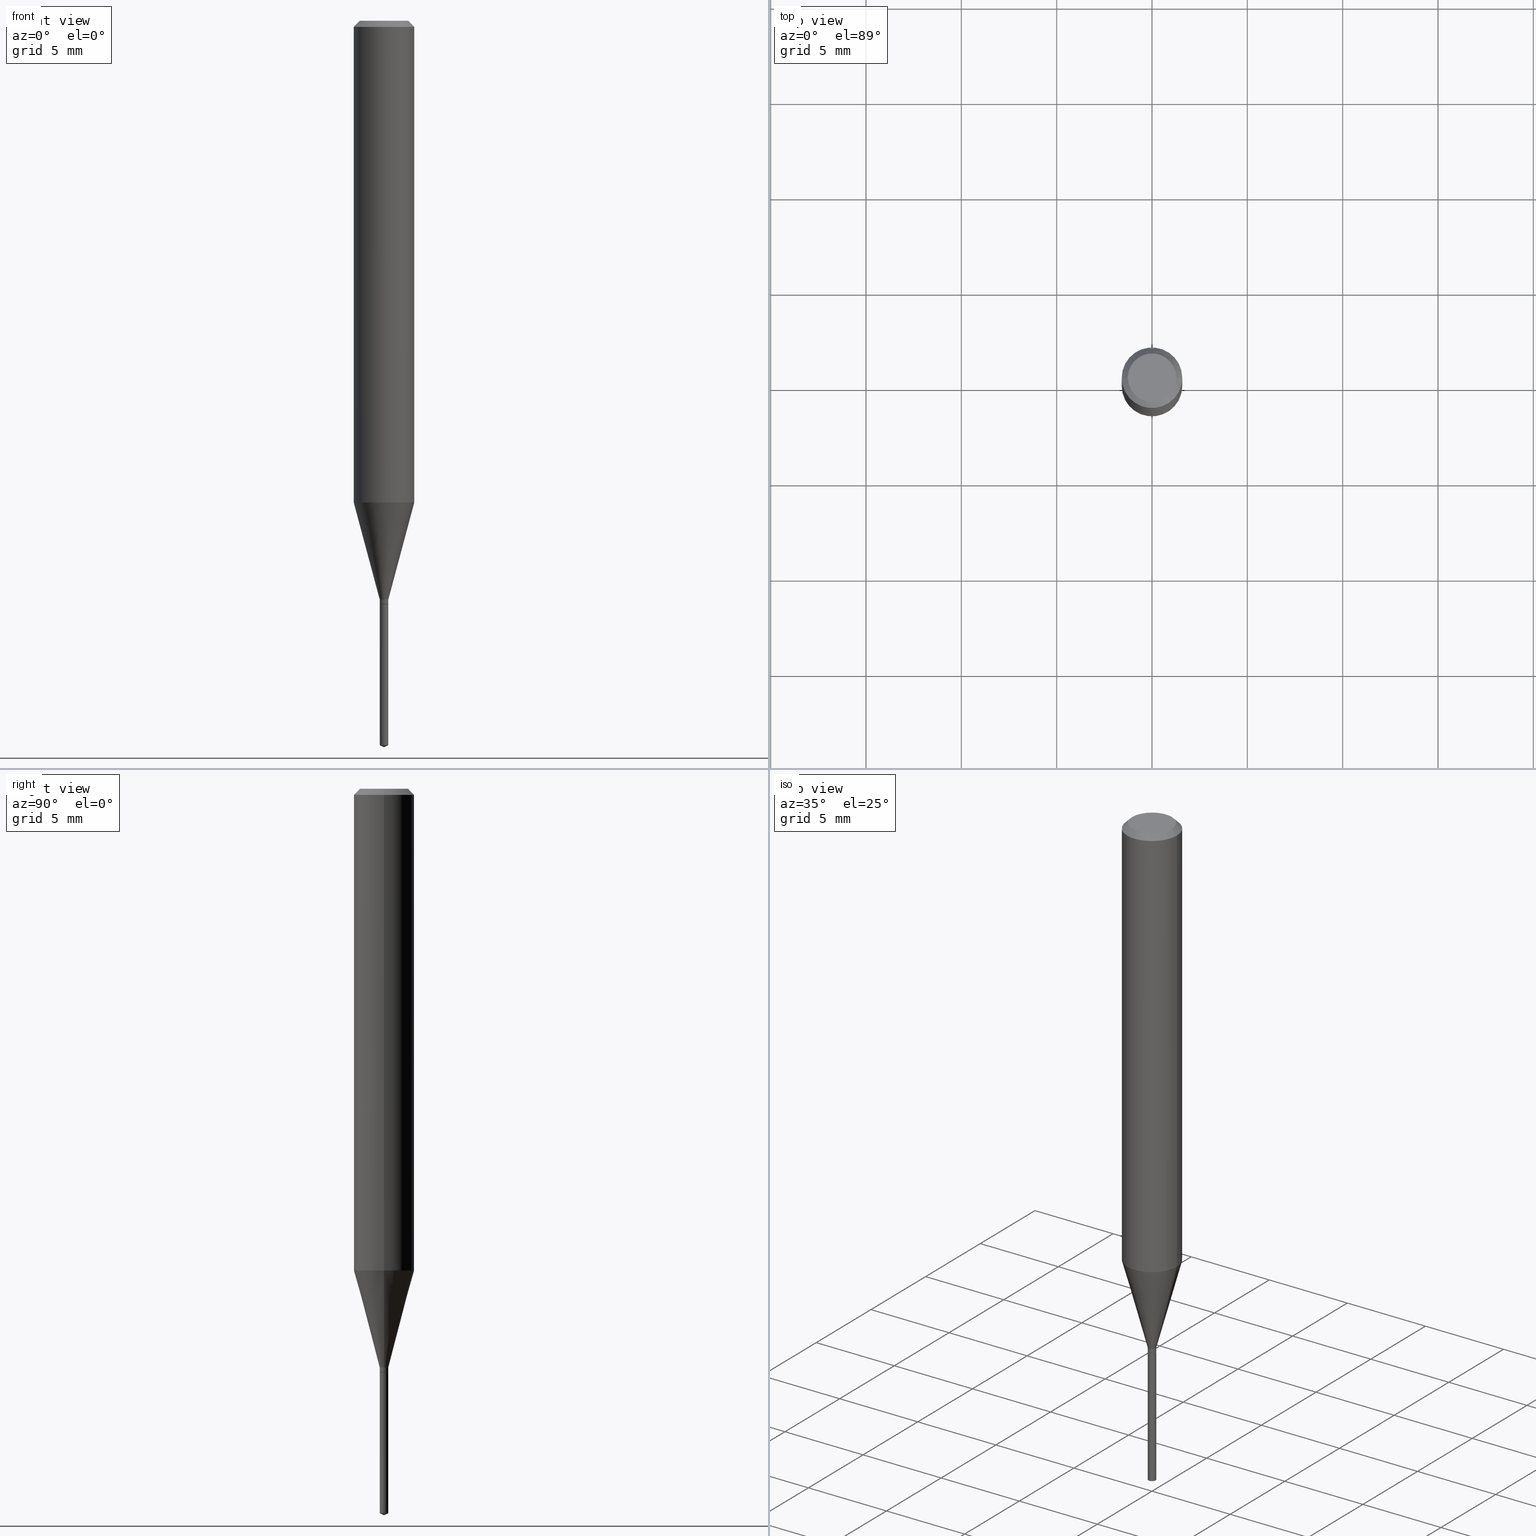
[diagram: canonical four-view strip — front | top / right | iso, engineering-drawing reading convention]
A machine part, canonical four-view strip (front | top / right | iso — engineering-drawing reading convention). The complete STEP part file that produces these views, byte-faithful:
ISO-10303-21;
HEADER;
FILE_DESCRIPTION (( 'STEP AP203' ),
    '1' );
FILE_NAME ('07145.STEP',
    '2024-04-23T19:43:20',
    ( '' ),
    ( '' ),
    'SwSTEP 2.0',
    'SolidWorks 2023',
    '' );
FILE_SCHEMA (( 'CONFIG_CONTROL_DESIGN' ));
ENDSEC;

DATA;
#1 = AXIS2_PLACEMENT_3D ( 'NONE', #396, #365, #218 ) ;
#2 = AXIS2_PLACEMENT_3D ( 'NONE', #449, #380, #273 ) ;
#3 = PERSON_AND_ORGANIZATION_ROLE ( 'creator' ) ;
#4 = EDGE_CURVE ( 'NONE', #179, #291, #445, .T. ) ;
#5 = DATE_TIME_ROLE ( 'classification_date' ) ;
#6 = DIRECTION ( 'NONE',  ( -2.445468806185136597E-29, 3.491481338843145583E-15, 1.000000000000000000 ) ) ;
#7 = CARTESIAN_POINT ( 'NONE',  ( 2.946789911453089913E-29, -4.207235013305990839E-15, -1.205000000000000071 ) ) ;
#8 = AXIS2_PLACEMENT_3D ( 'NONE', #368, #230, #334 ) ;
#9 = VECTOR ( 'NONE', #182, 39.37007874015748143 ) ;
#10 = DIRECTION ( 'NONE',  ( -2.445468806185136597E-29, 3.491481338843145583E-15, 1.000000000000000000 ) ) ;
#11 = DIRECTION ( 'NONE',  ( -6.328713451373487708E-15, -0.9063077870366654798, 0.4226182617406664122 ) ) ;
#12 = CC_DESIGN_DATE_AND_TIME_ASSIGNMENT ( #127, #5, ( #399 ) ) ;
#13 = EDGE_CURVE ( 'NONE', #407, #225, #275, .T. ) ;
#14 = DIRECTION ( 'NONE',  ( -0.7071067811865451302, 2.468850131082231817E-15, -0.7071067811865499042 ) ) ;
#15 = EDGE_LOOP ( 'NONE', ( #131, #426, #165, #97 ) ) ;
#16 = FACE_OUTER_BOUND ( 'NONE', #336, .T. ) ;
#17 = VECTOR ( 'NONE', #14, 39.37007874015748143 ) ;
#18 = CIRCLE ( 'NONE', #217, 0.008850000000000000228 ) ;
#19 = AXIS2_PLACEMENT_3D ( 'NONE', #213, #255, #168 ) ;
#20 = AXIS2_PLACEMENT_3D ( 'NONE', #118, #197, #155 ) ;
#21 = CARTESIAN_POINT ( 'NONE',  ( 0.06250000000000000000, -4.800786840909313294E-16, -0.01250000000000008570 ) ) ;
#22 = EDGE_LOOP ( 'NONE', ( #357, #366, #143, #323 ) ) ;
#23 = DIRECTION ( 'NONE',  ( -2.445468806185136877E-29, 3.491481338843145188E-15, 1.000000000000000000 ) ) ;
#24 = DIRECTION ( 'NONE',  ( -2.445468806185136597E-29, 3.491481338843145583E-15, 1.000000000000000000 ) ) ;
#25 = ORIENTED_EDGE ( 'NONE', *, *, #483, .F. ) ;
#26 = ORIENTED_EDGE ( 'NONE', *, *, #341, .T. ) ;
#27 = LINE ( 'NONE', #410, #256 ) ;
#28 = DIRECTION ( 'NONE',  ( 0.2588190451025211836, 1.565188264969622559E-15, 0.9659258262890679791 ) ) ;
#29 = CONICAL_SURFACE ( 'NONE', #233, 0.008850000000000000228, 0.2617993877991499074 ) ;
#30 = DIRECTION ( 'NONE',  ( -2.445468806185136597E-29, 3.491481338843145583E-15, 1.000000000000000000 ) ) ;
#31 = CARTESIAN_POINT ( 'NONE',  ( -9.247706038054002126E-28, 1.324131881542389877E-13, 37.87007874015748143 ) ) ;
#32 = CARTESIAN_POINT ( 'NONE',  ( 3.056836007731441853E-31, -4.364351673553962300E-17, -0.01250000000000008570 ) ) ;
#33 = AXIS2_PLACEMENT_3D ( 'NONE', #164, #460, #245 ) ;
#34 = COORDINATED_UNIVERSAL_TIME_OFFSET ( 5, 0, .BEHIND. ) ;
#35 = FACE_OUTER_BOUND ( 'NONE', #370, .T. ) ;
#36 = PERSON_AND_ORGANIZATION ( #271, #409 ) ;
#37 = AXIS2_PLACEMENT_3D ( 'NONE', #104, #437, #372 ) ;
#38 = CALENDAR_DATE ( 2024, 23, 4 ) ;
#39 = FACE_OUTER_BOUND ( 'NONE', #134, .T. ) ;
#40 = FACE_OUTER_BOUND ( 'NONE', #224, .T. ) ;
#41 = CONICAL_SURFACE ( 'NONE', #1, 0.06250000000000000000, 0.7853981633974449483 ) ;
#42 = PERSON_AND_ORGANIZATION ( #271, #409 ) ;
#43 = CARTESIAN_POINT ( 'NONE',  ( 2.945567177049997112E-29, -4.205489272636569336E-15, -1.204500000000000126 ) ) ;
#44 = ORIENTED_EDGE ( 'NONE', *, *, #350, .T. ) ;
#45 = CARTESIAN_POINT ( 'NONE',  ( 2.946789911453089913E-29, -4.207235013305990839E-15, -1.205000000000000071 ) ) ;
#46 = DIRECTION ( 'NONE',  ( 1.000000000000000000, -6.982962677686267499E-15, 4.876176775795936353E-29 ) ) ;
#47 = LENGTH_MEASURE_WITH_UNIT ( LENGTH_MEASURE( 0.02539999999999999897 ), #95 );
#48 = AXIS2_PLACEMENT_3D ( 'NONE', #308, #30, #345 ) ;
#49 = EDGE_LOOP ( 'NONE', ( #54, #106 ) ) ;
#50 = ORIENTED_EDGE ( 'NONE', *, *, #283, .F. ) ;
#51 = UNCERTAINTY_MEASURE_WITH_UNIT (LENGTH_MEASURE( 1.000000000000000082E-05 ), #58, 'distance_accuracy_value', 'NONE');
#52 = EDGE_CURVE ( 'NONE', #433, #470, #482, .T. ) ;
#53 = DIRECTION ( 'NONE',  ( -2.445468806185136597E-29, 3.491481338843145583E-15, 1.000000000000000000 ) ) ;
#54 = ORIENTED_EDGE ( 'NONE', *, *, #171, .T. ) ;
#55 = ORIENTED_EDGE ( 'NONE', *, *, #287, .F. ) ;
#56 =( NAMED_UNIT ( * ) PLANE_ANGLE_UNIT ( ) SI_UNIT ( $, .RADIAN. ) );
#57 = DIRECTION ( 'NONE',  ( -2.445468806185136877E-29, 3.491481338843145188E-15, 1.000000000000000000 ) ) ;
#58 =( CONVERSION_BASED_UNIT ( 'INCH', #47 ) LENGTH_UNIT ( ) NAMED_UNIT ( #198 ) );
#59 = ORIENTED_EDGE ( 'NONE', *, *, #313, .F. ) ;
#60 = ORIENTED_EDGE ( 'NONE', *, *, #443, .F. ) ;
#61 = DIRECTION ( 'NONE',  ( -6.982962677686265133E-15, -1.000000000000000000, 0.000000000000000000 ) ) ;
#62 = VERTEX_POINT ( 'NONE', #146 ) ;
#63 = AXIS2_PLACEMENT_3D ( 'NONE', #184, #478, #144 ) ;
#64 = DIRECTION ( 'NONE',  ( -2.442064184349959249E-29, 3.496356951090160448E-15, 1.000000000000000000 ) ) ;
#65 = EDGE_CURVE ( 'NONE', #225, #407, #486, .T. ) ;
#66 = DIRECTION ( 'NONE',  ( -2.445468806185136877E-29, 3.491481338843145188E-15, 1.000000000000000000 ) ) ;
#67 = ADVANCED_FACE ( 'NONE', ( #358 ), #392, .F. ) ;
#68 = DIRECTION ( 'NONE',  ( 1.000000000000000000, -6.982962677686265922E-15, 4.876194921942043128E-29 ) ) ;
#69 = APPLICATION_PROTOCOL_DEFINITION ( 'international standard', 'config_control_design', 1994, #379 ) ;
#70 = APPROVAL ( #208, 'UNSPECIFIED' ) ;
#71 = CONICAL_SURFACE ( 'NONE', #389, 84.42940631928277639, 1.134464013796354198 ) ;
#72 = APPROVAL_PERSON_ORGANIZATION ( #212, #70, #132 ) ;
#73 = PERSON_AND_ORGANIZATION_ROLE ( 'design_owner' ) ;
#74 = CARTESIAN_POINT ( 'NONE',  ( 0.06250000000000012490, -3.909675171772509851E-15, -0.9947754741739297524 ) ) ;
#75 = ADVANCED_FACE ( 'NONE', ( #125 ), #163, .F. ) ;
#76 = DIRECTION ( 'NONE',  ( 1.000000000000000000, -6.982962677686268288E-15, 0.000000000000000000 ) ) ;
#77 = EDGE_CURVE ( 'NONE', #290, #391, #351, .T. ) ;
#78 = DATE_AND_TIME ( #455, #239 ) ;
#79 = CONICAL_SURFACE ( 'NONE', #447, 0.008349999999999999784, 0.7853981633974130849 ) ;
#80 = CC_DESIGN_SECURITY_CLASSIFICATION ( #399, ( #115 ) ) ;
#81 = APPROVAL_DATE_TIME ( #321, #112 ) ;
#82 = ADVANCED_FACE ( 'NONE', ( #278 ), #401, .T. ) ;
#83 = DIRECTION ( 'NONE',  ( -0.2588190451025211836, 5.211531920934547886E-15, 0.9659258262890679791 ) ) ;
#84 = EDGE_CURVE ( 'NONE', #264, #402, #458, .T. ) ;
#85 = CYLINDRICAL_SURFACE ( 'NONE', #408, 0.008850000000000000228 ) ;
#86 = CIRCLE ( 'NONE', #284, 0.06250000000000000000 ) ;
#87 = ORIENTED_EDGE ( 'NONE', *, *, #483, .T. ) ;
#88 = COORDINATED_UNIVERSAL_TIME_OFFSET ( 5, 0, .BEHIND. ) ;
#89 = DIRECTION ( 'NONE',  ( 2.442064184349958409E-29, -3.496356951090160842E-15, -1.000000000000000000 ) ) ;
#90 = ORIENTED_EDGE ( 'NONE', *, *, #147, .T. ) ;
#91 = VERTEX_POINT ( 'NONE', #390 ) ;
#92 = CC_DESIGN_PERSON_AND_ORGANIZATION_ASSIGNMENT ( #36, #3, ( #167 ) ) ;
#93 = DESIGN_CONTEXT ( 'detailed design', #332, 'design' ) ;
#94 = DIRECTION ( 'NONE',  ( 1.000000000000000000, -6.982962677686271444E-15, 0.000000000000000000 ) ) ;
#95 =( LENGTH_UNIT ( ) NAMED_UNIT ( * ) SI_UNIT ( $, .METRE. ) );
#96 = ORIENTED_EDGE ( 'NONE', *, *, #413, .F. ) ;
#97 = ORIENTED_EDGE ( 'NONE', *, *, #269, .F. ) ;
#98 = CARTESIAN_POINT ( 'NONE',  ( -4.132873053354867254E-48, 5.900647395337818946E-34, 1.690012582823346072E-19 ) ) ;
#99 = CIRCLE ( 'NONE', #373, 0.008850000000000000228 ) ;
#100 = EDGE_LOOP ( 'NONE', ( #474, #44, #461, #405 ) ) ;
#101 = ORIENTED_EDGE ( 'NONE', *, *, #422, .T. ) ;
#102 =( GEOMETRIC_REPRESENTATION_CONTEXT ( 3 ) GLOBAL_UNCERTAINTY_ASSIGNED_CONTEXT ( ( #51 ) ) GLOBAL_UNIT_ASSIGNED_CONTEXT ( ( #58, #56, #444 ) ) REPRESENTATION_CONTEXT ( 'NONE', 'WORKASPACE' ) );
#103 = ADVANCED_FACE ( 'NONE', ( #40 ), #79, .T. ) ;
#104 = CARTESIAN_POINT ( 'NONE',  ( 2.922335223391238368E-29, -4.172320199917559190E-15, -1.195000000000000062 ) ) ;
#105 = LINE ( 'NONE', #343, #9 ) ;
#106 = ORIENTED_EDGE ( 'NONE', *, *, #411, .T. ) ;
#107 = DIRECTION ( 'NONE',  ( -2.442064184349959249E-29, 3.496356951090160448E-15, 1.000000000000000000 ) ) ;
#108 = DIRECTION ( 'NONE',  ( -2.445468806185136597E-29, 3.491481338843145583E-15, 1.000000000000000000 ) ) ;
#109 = ORIENTED_EDGE ( 'NONE', *, *, #375, .T. ) ;
#110 = AXIS2_PLACEMENT_3D ( 'NONE', #162, #6, #468 ) ;
#111 = CARTESIAN_POINT ( 'NONE',  ( 2.945567177049997112E-29, -4.205489272636569336E-15, -1.204500000000000126 ) ) ;
#112 = APPROVAL ( #420, 'UNSPECIFIED' ) ;
#113 = CARTESIAN_POINT ( 'NONE',  ( -6.179921969748688623E-17, -0.008850000000005225215, -1.495873177225328865 ) ) ;
#114 = CARTESIAN_POINT ( 'NONE',  ( -9.247706038054002126E-28, 1.324131881542389877E-13, 37.87007874015748143 ) ) ;
#115 = PRODUCT_DEFINITION_FORMATION_WITH_SPECIFIED_SOURCE ( 'ANY', '', #200, .NOT_KNOWN. ) ;
#116 = ADVANCED_FACE ( 'NONE', ( #16 ), #173, .F. ) ;
#117 = VECTOR ( 'NONE', #28, 39.37007874015748854 ) ;
#118 = CARTESIAN_POINT ( 'NONE',  ( 0.000000000000000000, 0.000000000000000000, 0.000000000000000000 ) ) ;
#119 = CIRCLE ( 'NONE', #311, 0.06250000000000000000 ) ;
#120 = CC_DESIGN_APPROVAL ( #70, ( #399 ) ) ;
#121 = LINE ( 'NONE', #277, #244 ) ;
#122 = DIRECTION ( 'NONE',  ( 0.7071067811865451302, -7.319954787623248157E-15, -0.7071067811865499042 ) ) ;
#123 = PERSON_AND_ORGANIZATION_ROLE ( 'design_supplier' ) ;
#124 = DIRECTION ( 'NONE',  ( -2.442064184349959249E-29, 3.496356951090160448E-15, 1.000000000000000000 ) ) ;
#125 = FACE_OUTER_BOUND ( 'NONE', #135, .T. ) ;
#126 = VERTEX_POINT ( 'NONE', #354 ) ;
#127 = DATE_AND_TIME ( #292, #276 ) ;
#128 = EDGE_CURVE ( 'NONE', #430, #91, #322, .T. ) ;
#129 = CARTESIAN_POINT ( 'NONE',  ( 2.946789911453089913E-29, -4.207235013305990839E-15, -1.205000000000000071 ) ) ;
#130 = DIRECTION ( 'NONE',  ( 1.000000000000000000, -6.982962677686265922E-15, 4.876176775795935232E-29 ) ) ;
#131 = ORIENTED_EDGE ( 'NONE', *, *, #139, .F. ) ;
#132 = APPROVAL_ROLE ( '' ) ;
#133 = CARTESIAN_POINT ( 'NONE',  ( 3.663096276524938454E-29, -5.244535426635240672E-15, -1.500000000000000222 ) ) ;
#134 = EDGE_LOOP ( 'NONE', ( #221, #333, #96, #50 ) ) ;
#135 = EDGE_LOOP ( 'NONE', ( #215, #367 ) ) ;
#136 = PERSON_AND_ORGANIZATION_ROLE ( 'classification_officer' ) ;
#137 = CARTESIAN_POINT ( 'NONE',  ( 6.288303211480542684E-17, 0.008849999999994775240, -1.495873177225328865 ) ) ;
#138 = EDGE_LOOP ( 'NONE', ( #228, #26, #300, #180 ) ) ;
#139 = EDGE_CURVE ( 'NONE', #225, #394, #223, .T. ) ;
#140 = ORIENTED_EDGE ( 'NONE', *, *, #153, .F. ) ;
#141 = FACE_OUTER_BOUND ( 'NONE', #138, .T. ) ;
#142 = AXIS2_PLACEMENT_3D ( 'NONE', #191, #232, #377 ) ;
#143 = ORIENTED_EDGE ( 'NONE', *, *, #231, .F. ) ;
#144 = DIRECTION ( 'NONE',  ( 1.000000000000000000, -6.982962677686268288E-15, 0.000000000000000000 ) ) ;
#145 = CARTESIAN_POINT ( 'NONE',  ( 6.288303211480550080E-17, 0.008849999999995791788, -1.205000000000000071 ) ) ;
#146 = CARTESIAN_POINT ( 'NONE',  ( -6.179921969749398598E-17, -0.008850000000004206932, -1.205000000000000071 ) ) ;
#147 = EDGE_CURVE ( 'NONE', #126, #211, #329, .T. ) ;
#148 = DIRECTION ( 'NONE',  ( 6.439704144417143949E-15, 0.9063077870366683664, 0.4226182617406600284 ) ) ;
#149 = AXIS2_PLACEMENT_3D ( 'NONE', #98, #169, #469 ) ;
#150 = CIRCLE ( 'NONE', #480, 0.008349999999999999784 ) ;
#151 = APPROVAL_PERSON_ORGANIZATION ( #352, #112, #361 ) ;
#152 = CARTESIAN_POINT ( 'NONE',  ( 3.671373364528048644E-29, -5.232785201119936018E-15, -1.500000000000000222 ) ) ;
#153 = EDGE_CURVE ( 'NONE', #360, #407, #243, .T. ) ;
#154 = FACE_OUTER_BOUND ( 'NONE', #344, .T. ) ;
#155 = DIRECTION ( 'NONE',  ( 1.000000000000000000, -6.982962677686267499E-15, 4.876176775795936353E-29 ) ) ;
#156 = PRODUCT_DEFINITION_SHAPE ( 'NONE', 'NONE',  #167 ) ;
#157 = AXIS2_PLACEMENT_3D ( 'NONE', #400, #472, #288 ) ;
#158 = CYLINDRICAL_SURFACE ( 'NONE', #20, 0.06250000000000005551 ) ;
#159 = APPROVAL_ROLE ( '' ) ;
#160 = CARTESIAN_POINT ( 'NONE',  ( -0.008850000000000000228, -4.126021704162294828E-15, -1.195000000000000062 ) ) ;
#161 = CIRCLE ( 'NONE', #8, 0.008850000000000000228 ) ;
#162 = CARTESIAN_POINT ( 'NONE',  ( 2.432692391250373077E-29, -3.473240004417117392E-15, -0.9947754741739297524 ) ) ;
#163 = PLANE ( 'NONE',  #254 ) ;
#164 = CARTESIAN_POINT ( 'NONE',  ( -8.265746106709734507E-48, 1.180129479067563789E-33, 3.380025165646692144E-19 ) ) ;
#165 = ORIENTED_EDGE ( 'NONE', *, *, #283, .T. ) ;
#166 = COORDINATED_UNIVERSAL_TIME_OFFSET ( 5, 0, .BEHIND. ) ;
#167 = PRODUCT_DEFINITION ( 'UNKNOWN', '', #115, #93 ) ;
#168 = DIRECTION ( 'NONE',  ( 1.000000000000000000, -6.982962677686271444E-15, 0.000000000000000000 ) ) ;
#169 = DIRECTION ( 'NONE',  ( 2.438088387897960049E-29, -3.491481338843145188E-15, -1.000000000000000000 ) ) ;
#170 = AXIS2_PLACEMENT_3D ( 'NONE', #298, #107, #340 ) ;
#171 = EDGE_CURVE ( 'NONE', #264, #126, #456, .T. ) ;
#172 = CLOSED_SHELL ( 'NONE', ( #479, #186, #452, #261, #253, #176, #429, #82, #454, #67, #116, #103 ) ) ;
#173 = PLANE ( 'NONE',  #196 ) ;
#174 = LOCAL_TIME ( 15, 43, 20.00000000000000000, #388 ) ;
#175 = ORIENTED_EDGE ( 'NONE', *, *, #287, .T. ) ;
#176 = ADVANCED_FACE ( 'NONE', ( #424 ), #85, .T. ) ;
#177 = LINE ( 'NONE', #331, #272 ) ;
#178 = CC_DESIGN_PERSON_AND_ORGANIZATION_ASSIGNMENT ( #199, #73, ( #200 ) ) ;
#179 = VERTEX_POINT ( 'NONE', #286 ) ;
#180 = ORIENTED_EDGE ( 'NONE', *, *, #350, .F. ) ;
#181 = CARTESIAN_POINT ( 'NONE',  ( 2.946789911453089913E-29, -4.207235013305990839E-15, -1.205000000000000071 ) ) ;
#182 = DIRECTION ( 'NONE',  ( 0.7071067811865225927, -2.468850131081995948E-15, 0.7071067811865724417 ) ) ;
#183 = ORIENTED_EDGE ( 'NONE', *, *, #363, .F. ) ;
#184 = CARTESIAN_POINT ( 'NONE',  ( 2.946789911453089913E-29, -4.207235013305990839E-15, -1.205000000000000071 ) ) ;
#185 = CARTESIAN_POINT ( 'NONE',  ( 3.056836007731441853E-31, -4.364351673553962300E-17, -0.01250000000000008570 ) ) ;
#186 = ADVANCED_FACE ( 'NONE', ( #428 ), #41, .T. ) ;
#187 = CIRCLE ( 'NONE', #48, 0.06250000000000012490 ) ;
#188 = ORIENTED_EDGE ( 'NONE', *, *, #241, .F. ) ;
#189 = CARTESIAN_POINT ( 'NONE',  ( 0.008850000000000000228, -4.234119419615082783E-15, -1.195000000000000062 ) ) ;
#190 = CONICAL_SURFACE ( 'NONE', #258, 84.42940631928277639, 1.134464013796354198 ) ;
#191 = CARTESIAN_POINT ( 'NONE',  ( 2.946789911453089913E-29, -4.207235013305990839E-15, -1.205000000000000071 ) ) ;
#192 = ORIENTED_EDGE ( 'NONE', *, *, #384, .T. ) ;
#193 = APPROVAL ( #349, 'UNSPECIFIED' ) ;
#194 = CARTESIAN_POINT ( 'NONE',  ( 3.663096276524939014E-29, -5.244535426635240672E-15, -1.500000000000000222 ) ) ;
#195 = DIRECTION ( 'NONE',  ( 1.000000000000000000, -6.982962677686266711E-15, 0.000000000000000000 ) ) ;
#196 = AXIS2_PLACEMENT_3D ( 'NONE', #387, #247, #206 ) ;
#197 = DIRECTION ( 'NONE',  ( -2.445468806185136597E-29, 3.491481338843145583E-15, 1.000000000000000000 ) ) ;
#198 = DIMENSIONAL_EXPONENTS ( 1.000000000000000000, 0.000000000000000000, 0.000000000000000000, 0.000000000000000000, 0.000000000000000000, 0.000000000000000000, 0.000000000000000000 ) ;
#199 = PERSON_AND_ORGANIZATION ( #271, #409 ) ;
#200 = PRODUCT ( '07145', '07145', '', ( #234 ) ) ;
#201 = VECTOR ( 'NONE', #23, 39.37007874015748143 ) ;
#202 = APPROVAL_DATE_TIME ( #249, #70 ) ;
#203 = VECTOR ( 'NONE', #484, 39.37007874015748143 ) ;
#204 = FACE_OUTER_BOUND ( 'NONE', #440, .T. ) ;
#205 = CONICAL_SURFACE ( 'NONE', #467, 0.008349999999999999784, 0.7853981633974130849 ) ;
#206 = DIRECTION ( 'NONE',  ( 1.000000000000000000, -6.982962677686265922E-15, 4.876176775795935793E-29 ) ) ;
#207 = ADVANCED_BREP_SHAPE_REPRESENTATION ( '07145', ( #303, #453, #2 ), #102 ) ;
#208 = APPROVAL_STATUS ( 'not_yet_approved' ) ;
#209 = DIRECTION ( 'NONE',  ( -2.445468806185136597E-29, 3.491481338843145583E-15, 1.000000000000000000 ) ) ;
#210 = CC_DESIGN_PERSON_AND_ORGANIZATION_ASSIGNMENT ( #324, #136, ( #399 ) ) ;
#211 = VERTEX_POINT ( 'NONE', #21 ) ;
#212 = PERSON_AND_ORGANIZATION ( #271, #409 ) ;
#213 = CARTESIAN_POINT ( 'NONE',  ( 2.922335223391238368E-29, -4.172320199917559190E-15, -1.195000000000000062 ) ) ;
#214 = DIRECTION ( 'NONE',  ( -2.442064184349959249E-29, 3.496356951090160842E-15, 1.000000000000000000 ) ) ;
#215 = ORIENTED_EDGE ( 'NONE', *, *, #413, .T. ) ;
#216 = EDGE_CURVE ( 'NONE', #179, #391, #177, .T. ) ;
#217 = AXIS2_PLACEMENT_3D ( 'NONE', #129, #431, #319 ) ;
#218 = DIRECTION ( 'NONE',  ( -1.000000000000000000, 6.982962677686266711E-15, 0.000000000000000000 ) ) ;
#219 = LOCAL_TIME ( 15, 43, 20.00000000000000000, #316 ) ;
#220 = ORIENTED_EDGE ( 'NONE', *, *, #13, .F. ) ;
#221 = ORIENTED_EDGE ( 'NONE', *, *, #13, .T. ) ;
#222 = CARTESIAN_POINT ( 'NONE',  ( 2.946789911453089913E-29, -4.207235013305990839E-15, -1.205000000000000071 ) ) ;
#223 = LINE ( 'NONE', #421, #238 ) ;
#224 = EDGE_LOOP ( 'NONE', ( #248, #246, #87, #260 ) ) ;
#225 = VERTEX_POINT ( 'NONE', #137 ) ;
#226 = ORIENTED_EDGE ( 'NONE', *, *, #231, .T. ) ;
#227 = LINE ( 'NONE', #476, #203 ) ;
#228 = ORIENTED_EDGE ( 'NONE', *, *, #128, .F. ) ;
#229 = ADVANCED_FACE ( 'NONE', ( #39 ), #457, .T. ) ;
#230 = DIRECTION ( 'NONE',  ( -2.445468806185136597E-29, 3.491481338843145583E-15, 1.000000000000000000 ) ) ;
#231 = EDGE_CURVE ( 'NONE', #433, #430, #364, .T. ) ;
#232 = DIRECTION ( 'NONE',  ( -2.442064184349959249E-29, 3.496356951090160448E-15, 1.000000000000000000 ) ) ;
#233 = AXIS2_PLACEMENT_3D ( 'NONE', #395, #10, #280 ) ;
#234 = MECHANICAL_CONTEXT ( 'NONE', #379, 'mechanical' ) ;
#235 = APPROVAL_DATE_TIME ( #78, #193 ) ;
#236 = FACE_OUTER_BOUND ( 'NONE', #439, .T. ) ;
#237 = CC_DESIGN_DATE_AND_TIME_ASSIGNMENT ( #314, #490, ( #167 ) ) ;
#238 = VECTOR ( 'NONE', #214, 39.37007874015748143 ) ;
#239 = LOCAL_TIME ( 15, 43, 20.00000000000000000, #34 ) ;
#240 = CALENDAR_DATE ( 2024, 23, 4 ) ;
#241 = EDGE_CURVE ( 'NONE', #470, #91, #353, .T. ) ;
#242 = CC_DESIGN_PERSON_AND_ORGANIZATION_ASSIGNMENT ( #42, #123, ( #115 ) ) ;
#243 = LINE ( 'NONE', #133, #451 ) ;
#244 = VECTOR ( 'NONE', #346, 39.37007874015748143 ) ;
#245 = DIRECTION ( 'NONE',  ( 1.000000000000000000, -6.982962677686265922E-15, 4.876194921942043128E-29 ) ) ;
#246 = ORIENTED_EDGE ( 'NONE', *, *, #4, .T. ) ;
#247 = DIRECTION ( 'NONE',  ( -2.438088387897960049E-29, 3.491481338843145188E-15, 1.000000000000000000 ) ) ;
#248 = ORIENTED_EDGE ( 'NONE', *, *, #216, .F. ) ;
#249 = DATE_AND_TIME ( #38, #307 ) ;
#250 = DIRECTION ( 'NONE',  ( -6.982962677686265133E-15, -1.000000000000000000, 0.000000000000000000 ) ) ;
#251 = DIRECTION ( 'NONE',  ( -2.445468806185136597E-29, 3.491481338843145583E-15, 1.000000000000000000 ) ) ;
#252 = EDGE_LOOP ( 'NONE', ( #297, #90, #192, #477 ) ) ;
#253 = ADVANCED_FACE ( 'NONE', ( #325 ), #386, .T. ) ;
#254 = AXIS2_PLACEMENT_3D ( 'NONE', #7, #89, #257 ) ;
#255 = DIRECTION ( 'NONE',  ( -2.445468806185136597E-29, 3.491481338843145583E-15, 1.000000000000000000 ) ) ;
#256 = VECTOR ( 'NONE', #57, 39.37007874015748143 ) ;
#257 = DIRECTION ( 'NONE',  ( 6.982962677686265922E-15, 1.000000000000000000, -3.496356951090160842E-15 ) ) ;
#258 = AXIS2_PLACEMENT_3D ( 'NONE', #114, #416, #317 ) ;
#259 = ORIENTED_EDGE ( 'NONE', *, *, #216, .T. ) ;
#260 = ORIENTED_EDGE ( 'NONE', *, *, #371, .F. ) ;
#261 = ADVANCED_FACE ( 'NONE', ( #204 ), #29, .T. ) ;
#262 = CARTESIAN_POINT ( 'NONE',  ( 0.008850000000000000228, -4.267288492334092140E-15, -1.204500000000000126 ) ) ;
#263 = ORIENTED_EDGE ( 'NONE', *, *, #241, .T. ) ;
#264 = VERTEX_POINT ( 'NONE', #423 ) ;
#265 = FACE_OUTER_BOUND ( 'NONE', #15, .T. ) ;
#266 = ORIENTED_EDGE ( 'NONE', *, *, #341, .F. ) ;
#267 = CONICAL_SURFACE ( 'NONE', #37, 0.008850000000000000228, 0.2617993877991499074 ) ;
#268 = CARTESIAN_POINT ( 'NONE',  ( 0.008850000000000000228, -6.179921969752345733E-17, 4.315416446579402924E-31 ) ) ;
#269 = EDGE_CURVE ( 'NONE', #394, #62, #18, .T. ) ;
#270 = CARTESIAN_POINT ( 'NONE',  ( 0.008349999999999999784, -4.265542751664671425E-15, -1.205000000000000071 ) ) ;
#271 = PERSON ( 'UNSPECIFIED', 'UNSPECIFIED', 'UNSPECIFIED', ('UNSPECIFIED'), ('UNSPECIFIED'), ('UNSPECIFIED') ) ;
#272 = VECTOR ( 'NONE', #473, 39.37007874015748143 ) ;
#273 = DIRECTION ( 'NONE',  ( 1.000000000000000000, 0.000000000000000000, 0.000000000000000000 ) ) ;
#274 = CARTESIAN_POINT ( 'NONE',  ( 2.946789911453089913E-29, -4.207235013305990839E-15, -1.205000000000000071 ) ) ;
#275 = CIRCLE ( 'NONE', #170, 0.008850000000000000228 ) ;
#276 = LOCAL_TIME ( 15, 43, 20.00000000000000000, #88 ) ;
#277 = CARTESIAN_POINT ( 'NONE',  ( -6.179921969749398598E-17, -0.008850000000004206932, -1.205000000000000071 ) ) ;
#278 = FACE_OUTER_BOUND ( 'NONE', #100, .T. ) ;
#279 = SECURITY_CLASSIFICATION_LEVEL ( 'unclassified' ) ;
#280 = DIRECTION ( 'NONE',  ( 1.000000000000000000, -6.982962677686271444E-15, 0.000000000000000000 ) ) ;
#281 = CARTESIAN_POINT ( 'NONE',  ( -0.008850000000000000228, -4.109437167802790150E-15, -1.195000000000000062 ) ) ;
#282 = ORIENTED_EDGE ( 'NONE', *, *, #84, .T. ) ;
#283 = EDGE_CURVE ( 'NONE', #407, #62, #121, .T. ) ;
#284 = AXIS2_PLACEMENT_3D ( 'NONE', #32, #295, #195 ) ;
#285 = APPROVAL_PERSON_ORGANIZATION ( #378, #193, #159 ) ;
#286 = CARTESIAN_POINT ( 'NONE',  ( -0.008349999999999999784, -4.145255467695910707E-15, -1.205000000000000071 ) ) ;
#287 = EDGE_CURVE ( 'NONE', #360, #225, #304, .T. ) ;
#288 = DIRECTION ( 'NONE',  ( 1.000000000000000000, -6.982962677686265922E-15, 4.876176775795935232E-29 ) ) ;
#289 = CARTESIAN_POINT ( 'NONE',  ( 0.000000000000000000, 0.000000000000000000, 0.000000000000000000 ) ) ;
#290 = VERTEX_POINT ( 'NONE', #262 ) ;
#291 = VERTEX_POINT ( 'NONE', #270 ) ;
#292 = CALENDAR_DATE ( 2024, 23, 4 ) ;
#293 = DIRECTION ( 'NONE',  ( -2.442064184349959249E-29, 3.496356951090160448E-15, 1.000000000000000000 ) ) ;
#294 = PRODUCT_RELATED_PRODUCT_CATEGORY ( 'detail', '', ( #200 ) ) ;
#295 = DIRECTION ( 'NONE',  ( -2.445468806185136597E-29, 3.491481338843145583E-15, 1.000000000000000000 ) ) ;
#296 = CC_DESIGN_APPROVAL ( #193, ( #167 ) ) ;
#297 = ORIENTED_EDGE ( 'NONE', *, *, #411, .F. ) ;
#298 = CARTESIAN_POINT ( 'NONE',  ( 3.657120879743143126E-29, -5.224231468383448703E-15, -1.495873177225328865 ) ) ;
#299 = CARTESIAN_POINT ( 'NONE',  ( -8.265746106709734507E-48, 1.180129479067563789E-33, 3.380025165646692144E-19 ) ) ;
#300 = ORIENTED_EDGE ( 'NONE', *, *, #52, .T. ) ;
#301 = CARTESIAN_POINT ( 'NONE',  ( 3.657120879743143126E-29, -5.224231468383448703E-15, -1.495873177225328865 ) ) ;
#302 = LINE ( 'NONE', #412, #201 ) ;
#303 = MANIFOLD_SOLID_BREP ( 'Body-Move/Copy2[1]', #425 ) ;
#304 = LINE ( 'NONE', #152, #381 ) ;
#305 = AXIS2_PLACEMENT_3D ( 'NONE', #289, #209, #46 ) ;
#306 = CIRCLE ( 'NONE', #398, 0.04999999999999999584 ) ;
#307 = LOCAL_TIME ( 15, 43, 20.00000000000000000, #166 ) ;
#308 = CARTESIAN_POINT ( 'NONE',  ( 2.432692391250373077E-29, -3.473240004417117392E-15, -0.9947754741739297524 ) ) ;
#309 = CC_DESIGN_PERSON_AND_ORGANIZATION_ASSIGNMENT ( #459, #465, ( #115 ) ) ;
#310 = DIRECTION ( 'NONE',  ( 2.445468806185136597E-29, -3.491481338843145583E-15, -1.000000000000000000 ) ) ;
#311 = AXIS2_PLACEMENT_3D ( 'NONE', #185, #342, #338 ) ;
#312 = AXIS2_PLACEMENT_3D ( 'NONE', #382, #310, #450 ) ;
#313 = EDGE_CURVE ( 'NONE', #470, #211, #302, .T. ) ;
#314 = DATE_AND_TIME ( #489, #219 ) ;
#315 = CARTESIAN_POINT ( 'NONE',  ( 0.008850000000000000228, -4.234119419615082783E-15, -1.195000000000000062 ) ) ;
#316 = COORDINATED_UNIVERSAL_TIME_OFFSET ( 5, 0, .BEHIND. ) ;
#317 = DIRECTION ( 'NONE',  ( -6.982962677686266711E-15, -1.000000000000000000, 3.520397390770102038E-15 ) ) ;
#318 = VECTOR ( 'NONE', #83, 39.37007874015748854 ) ;
#319 = DIRECTION ( 'NONE',  ( -6.982962677686265133E-15, -1.000000000000000000, 0.000000000000000000 ) ) ;
#320 = CARTESIAN_POINT ( 'NONE',  ( 0.06250000000000000000, -4.724246415962603826E-16, -0.01250000000000008570 ) ) ;
#321 = DATE_AND_TIME ( #240, #174 ) ;
#322 = LINE ( 'NONE', #281, #318 ) ;
#323 = ORIENTED_EDGE ( 'NONE', *, *, #375, .F. ) ;
#324 = PERSON_AND_ORGANIZATION ( #271, #409 ) ;
#325 = FACE_OUTER_BOUND ( 'NONE', #22, .T. ) ;
#326 = DIRECTION ( 'NONE',  ( 1.000000000000000000, -6.982962677686268288E-15, 0.000000000000000000 ) ) ;
#327 = ORIENTED_EDGE ( 'NONE', *, *, #65, .F. ) ;
#328 = AXIS2_PLACEMENT_3D ( 'NONE', #111, #108, #485 ) ;
#329 = LINE ( 'NONE', #320, #418 ) ;
#330 = ORIENTED_EDGE ( 'NONE', *, *, #128, .T. ) ;
#331 = CARTESIAN_POINT ( 'NONE',  ( -0.008349999999999999784, -4.147904694870022697E-15, -1.205000000000000071 ) ) ;
#332 = APPLICATION_CONTEXT ( 'configuration controlled 3d designs of mechanical parts and assemblies' ) ;
#333 = ORIENTED_EDGE ( 'NONE', *, *, #139, .T. ) ;
#334 = DIRECTION ( 'NONE',  ( 1.000000000000000000, -6.982962677686271444E-15, 0.000000000000000000 ) ) ;
#335 = DIRECTION ( 'NONE',  ( 1.000000000000000000, -6.982962677686268288E-15, 0.000000000000000000 ) ) ;
#336 = EDGE_LOOP ( 'NONE', ( #60, #393 ) ) ;
#337 = ORIENTED_EDGE ( 'NONE', *, *, #52, .F. ) ;
#338 = DIRECTION ( 'NONE',  ( 1.000000000000000000, -6.982962677686266711E-15, 0.000000000000000000 ) ) ;
#339 = AXIS2_PLACEMENT_3D ( 'NONE', #222, #124, #250 ) ;
#340 = DIRECTION ( 'NONE',  ( -6.982962677686265922E-15, -1.000000000000000000, 0.000000000000000000 ) ) ;
#341 = EDGE_CURVE ( 'NONE', #430, #433, #161, .T. ) ;
#342 = DIRECTION ( 'NONE',  ( -2.445468806185136597E-29, 3.491481338843145583E-15, 1.000000000000000000 ) ) ;
#343 = CARTESIAN_POINT ( 'NONE',  ( 0.008349999999999999784, -4.265542751664671425E-15, -1.205000000000000071 ) ) ;
#344 = EDGE_LOOP ( 'NONE', ( #55, #464, #327 ) ) ;
#345 = DIRECTION ( 'NONE',  ( 1.000000000000000000, -6.982962677686264344E-15, 0.000000000000000000 ) ) ;
#346 = DIRECTION ( 'NONE',  ( -2.442064184349959249E-29, 3.496356951090160842E-15, 1.000000000000000000 ) ) ;
#347 = ADVANCED_FACE ( 'NONE', ( #376 ), #71, .T. ) ;
#348 = FACE_OUTER_BOUND ( 'NONE', #434, .T. ) ;
#349 = APPROVAL_STATUS ( 'not_yet_approved' ) ;
#350 = EDGE_CURVE ( 'NONE', #91, #470, #187, .T. ) ;
#351 = CIRCLE ( 'NONE', #415, 0.008850000000000000228 ) ;
#352 = PERSON_AND_ORGANIZATION ( #271, #409 ) ;
#353 = CIRCLE ( 'NONE', #110, 0.06250000000000012490 ) ;
#354 = CARTESIAN_POINT ( 'NONE',  ( 0.04999999999999999584, -4.077247707424184705E-16, 3.380025165673154903E-19 ) ) ;
#355 = SHAPE_DEFINITION_REPRESENTATION ( #156, #207 ) ;
#356 = CARTESIAN_POINT ( 'NONE',  ( -0.06250000000000000000, 3.927916506198520587E-16, -0.01250000000000008570 ) ) ;
#357 = ORIENTED_EDGE ( 'NONE', *, *, #77, .T. ) ;
#358 = FACE_OUTER_BOUND ( 'NONE', #49, .T. ) ;
#359 = ORIENTED_EDGE ( 'NONE', *, *, #443, .T. ) ;
#360 = VERTEX_POINT ( 'NONE', #194 ) ;
#361 = APPROVAL_ROLE ( '' ) ;
#362 = AXIS2_PLACEMENT_3D ( 'NONE', #301, #293, #435 ) ;
#363 = EDGE_CURVE ( 'NONE', #391, #430, #27, .T. ) ;
#364 = CIRCLE ( 'NONE', #19, 0.008850000000000000228 ) ;
#365 = DIRECTION ( 'NONE',  ( 2.445468806185136597E-29, -3.491481338843145583E-15, -1.000000000000000000 ) ) ;
#366 = ORIENTED_EDGE ( 'NONE', *, *, #363, .T. ) ;
#367 = ORIENTED_EDGE ( 'NONE', *, *, #269, .T. ) ;
#368 = CARTESIAN_POINT ( 'NONE',  ( 2.922335223391238368E-29, -4.172320199917559190E-15, -1.195000000000000062 ) ) ;
#369 = ORIENTED_EDGE ( 'NONE', *, *, #171, .F. ) ;
#370 = EDGE_LOOP ( 'NONE', ( #359, #259, #442, #25 ) ) ;
#371 = EDGE_CURVE ( 'NONE', #391, #290, #427, .T. ) ;
#372 = DIRECTION ( 'NONE',  ( 1.000000000000000000, -6.982962677686271444E-15, 0.000000000000000000 ) ) ;
#373 = AXIS2_PLACEMENT_3D ( 'NONE', #181, #406, #61 ) ;
#374 = EDGE_LOOP ( 'NONE', ( #140, #175, #220 ) ) ;
#375 = EDGE_CURVE ( 'NONE', #290, #433, #446, .T. ) ;
#376 = FACE_OUTER_BOUND ( 'NONE', #374, .T. ) ;
#377 = DIRECTION ( 'NONE',  ( -6.982962677686265133E-15, -1.000000000000000000, 0.000000000000000000 ) ) ;
#378 = PERSON_AND_ORGANIZATION ( #271, #409 ) ;
#379 = APPLICATION_CONTEXT ( 'configuration controlled 3d designs of mechanical parts and assemblies' ) ;
#380 = DIRECTION ( 'NONE',  ( 0.000000000000000000, 0.000000000000000000, 1.000000000000000000 ) ) ;
#381 = VECTOR ( 'NONE', #148, 39.37007874015748854 ) ;
#382 = CARTESIAN_POINT ( 'NONE',  ( 3.056836007731441853E-31, -4.364351673553962300E-17, -0.01250000000000008570 ) ) ;
#383 = ADVANCED_FACE ( 'NONE', ( #265 ), #448, .T. ) ;
#384 = EDGE_CURVE ( 'NONE', #211, #402, #119, .T. ) ;
#385 = EDGE_CURVE ( 'NONE', #402, #211, #86, .T. ) ;
#386 = CYLINDRICAL_SURFACE ( 'NONE', #157, 0.008850000000000000228 ) ;
#387 = CARTESIAN_POINT ( 'NONE',  ( 2.946789911453089913E-29, -4.207235013305990839E-15, -1.205000000000000071 ) ) ;
#388 = COORDINATED_UNIVERSAL_TIME_OFFSET ( 5, 0, .BEHIND. ) ;
#389 = AXIS2_PLACEMENT_3D ( 'NONE', #31, #64, #403 ) ;
#390 = CARTESIAN_POINT ( 'NONE',  ( -0.06250000000000012490, -3.029150794567053198E-15, -0.9947754741739297524 ) ) ;
#391 = VERTEX_POINT ( 'NONE', #481 ) ;
#392 = PLANE ( 'NONE',  #149 ) ;
#393 = ORIENTED_EDGE ( 'NONE', *, *, #4, .F. ) ;
#394 = VERTEX_POINT ( 'NONE', #145 ) ;
#395 = CARTESIAN_POINT ( 'NONE',  ( 2.922335223391238368E-29, -4.172320199917559190E-15, -1.195000000000000062 ) ) ;
#396 = CARTESIAN_POINT ( 'NONE',  ( 3.056836007731441853E-31, -4.364351673553962300E-17, -0.01250000000000008570 ) ) ;
#397 = ORIENTED_EDGE ( 'NONE', *, *, #384, .F. ) ;
#398 = AXIS2_PLACEMENT_3D ( 'NONE', #299, #441, #68 ) ;
#399 = SECURITY_CLASSIFICATION ( '', '', #279 ) ;
#400 = CARTESIAN_POINT ( 'NONE',  ( 0.000000000000000000, 0.000000000000000000, 0.000000000000000000 ) ) ;
#401 = CYLINDRICAL_SURFACE ( 'NONE', #305, 0.06250000000000005551 ) ;
#402 = VERTEX_POINT ( 'NONE', #487 ) ;
#403 = DIRECTION ( 'NONE',  ( -6.982962677686266711E-15, -1.000000000000000000, 3.520397390770102038E-15 ) ) ;
#404 = EDGE_LOOP ( 'NONE', ( #183, #475, #109, #266 ) ) ;
#405 = ORIENTED_EDGE ( 'NONE', *, *, #385, .F. ) ;
#406 = DIRECTION ( 'NONE',  ( -2.442064184349959249E-29, 3.496356951090160448E-15, 1.000000000000000000 ) ) ;
#407 = VERTEX_POINT ( 'NONE', #113 ) ;
#408 = AXIS2_PLACEMENT_3D ( 'NONE', #432, #251, #130 ) ;
#409 = ORGANIZATION ( 'UNSPECIFIED', 'UNSPECIFIED', '' ) ;
#410 = CARTESIAN_POINT ( 'NONE',  ( -0.008850000000000000228, 6.288303211476886807E-17, -4.353257554875591324E-31 ) ) ;
#411 = EDGE_CURVE ( 'NONE', #126, #264, #306, .T. ) ;
#412 = CARTESIAN_POINT ( 'NONE',  ( 0.06250000000000005551, -4.364351673553921131E-16, 3.047610484872463023E-30 ) ) ;
#413 = EDGE_CURVE ( 'NONE', #62, #394, #99, .T. ) ;
#414 = DIRECTION ( 'NONE',  ( -2.445468806185136597E-29, 3.491481338843145583E-15, 1.000000000000000000 ) ) ;
#415 = AXIS2_PLACEMENT_3D ( 'NONE', #43, #463, #94 ) ;
#416 = DIRECTION ( 'NONE',  ( -2.442064184349959249E-29, 3.496356951090160448E-15, 1.000000000000000000 ) ) ;
#417 = APPLICATION_PROTOCOL_DEFINITION ( 'international standard', 'config_control_design', 1994, #332 ) ;
#418 = VECTOR ( 'NONE', #122, 39.37007874015748143 ) ;
#419 = CONICAL_SURFACE ( 'NONE', #312, 0.06250000000000000000, 0.7853981633974449483 ) ;
#420 = APPROVAL_STATUS ( 'not_yet_approved' ) ;
#421 = CARTESIAN_POINT ( 'NONE',  ( 6.288303211479832709E-17, 0.008849999999995791788, -1.205000000000000071 ) ) ;
#422 = EDGE_CURVE ( 'NONE', #91, #402, #227, .T. ) ;
#423 = CARTESIAN_POINT ( 'NONE',  ( -0.04999999999999999584, 3.709698922520826725E-16, 3.380025165621512536E-19 ) ) ;
#424 = FACE_OUTER_BOUND ( 'NONE', #404, .T. ) ;
#425 = CLOSED_SHELL ( 'NONE', ( #229, #347, #462, #383, #75 ) ) ;
#426 = ORIENTED_EDGE ( 'NONE', *, *, #65, .T. ) ;
#427 = CIRCLE ( 'NONE', #328, 0.008850000000000000228 ) ;
#428 = FACE_OUTER_BOUND ( 'NONE', #252, .T. ) ;
#429 = ADVANCED_FACE ( 'NONE', ( #141 ), #267, .T. ) ;
#430 = VERTEX_POINT ( 'NONE', #160 ) ;
#431 = DIRECTION ( 'NONE',  ( -2.442064184349959249E-29, 3.496356951090160448E-15, 1.000000000000000000 ) ) ;
#432 = CARTESIAN_POINT ( 'NONE',  ( 0.000000000000000000, 0.000000000000000000, 0.000000000000000000 ) ) ;
#433 = VERTEX_POINT ( 'NONE', #315 ) ;
#434 = EDGE_LOOP ( 'NONE', ( #436, #369, #282, #471 ) ) ;
#435 = DIRECTION ( 'NONE',  ( -6.982962677686265922E-15, -1.000000000000000000, 0.000000000000000000 ) ) ;
#436 = ORIENTED_EDGE ( 'NONE', *, *, #147, .F. ) ;
#437 = DIRECTION ( 'NONE',  ( -2.445468806185136597E-29, 3.491481338843145583E-15, 1.000000000000000000 ) ) ;
#438 = CARTESIAN_POINT ( 'NONE',  ( 2.946789911453089913E-29, -4.207235013305990839E-15, -1.205000000000000071 ) ) ;
#439 = EDGE_LOOP ( 'NONE', ( #263, #101, #397, #59 ) ) ;
#440 = EDGE_LOOP ( 'NONE', ( #226, #330, #188, #337 ) ) ;
#441 = DIRECTION ( 'NONE',  ( -2.445468806185136597E-29, 3.491481338843145583E-15, 1.000000000000000000 ) ) ;
#442 = ORIENTED_EDGE ( 'NONE', *, *, #77, .F. ) ;
#443 = EDGE_CURVE ( 'NONE', #291, #179, #150, .T. ) ;
#444 =( NAMED_UNIT ( * ) SI_UNIT ( $, .STERADIAN. ) SOLID_ANGLE_UNIT ( ) );
#445 = CIRCLE ( 'NONE', #63, 0.008349999999999999784 ) ;
#446 = LINE ( 'NONE', #268, #466 ) ;
#447 = AXIS2_PLACEMENT_3D ( 'NONE', #45, #53, #326 ) ;
#448 = CYLINDRICAL_SURFACE ( 'NONE', #142, 0.008850000000000000228 ) ;
#449 = CARTESIAN_POINT ( 'NONE',  ( 0.000000000000000000, 0.000000000000000000, 0.000000000000000000 ) ) ;
#450 = DIRECTION ( 'NONE',  ( -1.000000000000000000, 6.982962677686266711E-15, 0.000000000000000000 ) ) ;
#451 = VECTOR ( 'NONE', #11, 39.37007874015747433 ) ;
#452 = ADVANCED_FACE ( 'NONE', ( #236 ), #158, .T. ) ;
#453 = MANIFOLD_SOLID_BREP ( 'Body-Move/Copy2[2]', #172 ) ;
#454 = ADVANCED_FACE ( 'NONE', ( #348 ), #419, .T. ) ;
#455 = CALENDAR_DATE ( 2024, 23, 4 ) ;
#456 = CIRCLE ( 'NONE', #33, 0.04999999999999999584 ) ;
#457 = CYLINDRICAL_SURFACE ( 'NONE', #339, 0.008850000000000000228 ) ;
#458 = LINE ( 'NONE', #356, #17 ) ;
#459 = PERSON_AND_ORGANIZATION ( #271, #409 ) ;
#460 = DIRECTION ( 'NONE',  ( -2.445468806185136597E-29, 3.491481338843145583E-15, 1.000000000000000000 ) ) ;
#461 = ORIENTED_EDGE ( 'NONE', *, *, #313, .T. ) ;
#462 = ADVANCED_FACE ( 'NONE', ( #154 ), #190, .T. ) ;
#463 = DIRECTION ( 'NONE',  ( -2.445468806185136597E-29, 3.491481338843145583E-15, 1.000000000000000000 ) ) ;
#464 = ORIENTED_EDGE ( 'NONE', *, *, #153, .T. ) ;
#465 = PERSON_AND_ORGANIZATION_ROLE ( 'creator' ) ;
#466 = VECTOR ( 'NONE', #66, 39.37007874015748143 ) ;
#467 = AXIS2_PLACEMENT_3D ( 'NONE', #438, #24, #335 ) ;
#468 = DIRECTION ( 'NONE',  ( 1.000000000000000000, -6.982962677686264344E-15, 0.000000000000000000 ) ) ;
#469 = DIRECTION ( 'NONE',  ( -1.000000000000000000, 6.982962677686265922E-15, -4.876176775795935793E-29 ) ) ;
#470 = VERTEX_POINT ( 'NONE', #74 ) ;
#471 = ORIENTED_EDGE ( 'NONE', *, *, #385, .T. ) ;
#472 = DIRECTION ( 'NONE',  ( -2.445468806185136597E-29, 3.491481338843145583E-15, 1.000000000000000000 ) ) ;
#473 = DIRECTION ( 'NONE',  ( -0.7071067811865225927, 7.493145998870264230E-15, 0.7071067811865724417 ) ) ;
#474 = ORIENTED_EDGE ( 'NONE', *, *, #422, .F. ) ;
#475 = ORIENTED_EDGE ( 'NONE', *, *, #371, .T. ) ;
#476 = CARTESIAN_POINT ( 'NONE',  ( -0.06250000000000005551, 4.440892098500630106E-16, -3.074334431409318916E-30 ) ) ;
#477 = ORIENTED_EDGE ( 'NONE', *, *, #84, .F. ) ;
#478 = DIRECTION ( 'NONE',  ( -2.445468806185136597E-29, 3.491481338843145583E-15, 1.000000000000000000 ) ) ;
#479 = ADVANCED_FACE ( 'NONE', ( #35 ), #205, .T. ) ;
#480 = AXIS2_PLACEMENT_3D ( 'NONE', #274, #414, #76 ) ;
#481 = CARTESIAN_POINT ( 'NONE',  ( -0.008850000000000000228, -4.126021704162294828E-15, -1.204500000000000126 ) ) ;
#482 = LINE ( 'NONE', #189, #117 ) ;
#483 = EDGE_CURVE ( 'NONE', #291, #290, #105, .T. ) ;
#484 = DIRECTION ( 'NONE',  ( -2.445468806185136877E-29, 3.491481338843145188E-15, 1.000000000000000000 ) ) ;
#485 = DIRECTION ( 'NONE',  ( 1.000000000000000000, -6.982962677686271444E-15, 0.000000000000000000 ) ) ;
#486 = CIRCLE ( 'NONE', #362, 0.008850000000000000228 ) ;
#487 = CARTESIAN_POINT ( 'NONE',  ( -0.06250000000000000000, -1.314352550726264677E-15, -0.01250000000000008570 ) ) ;
#488 = CC_DESIGN_APPROVAL ( #112, ( #115 ) ) ;
#489 = CALENDAR_DATE ( 2024, 23, 4 ) ;
#490 = DATE_TIME_ROLE ( 'creation_date' ) ;
ENDSEC;
END-ISO-10303-21;
